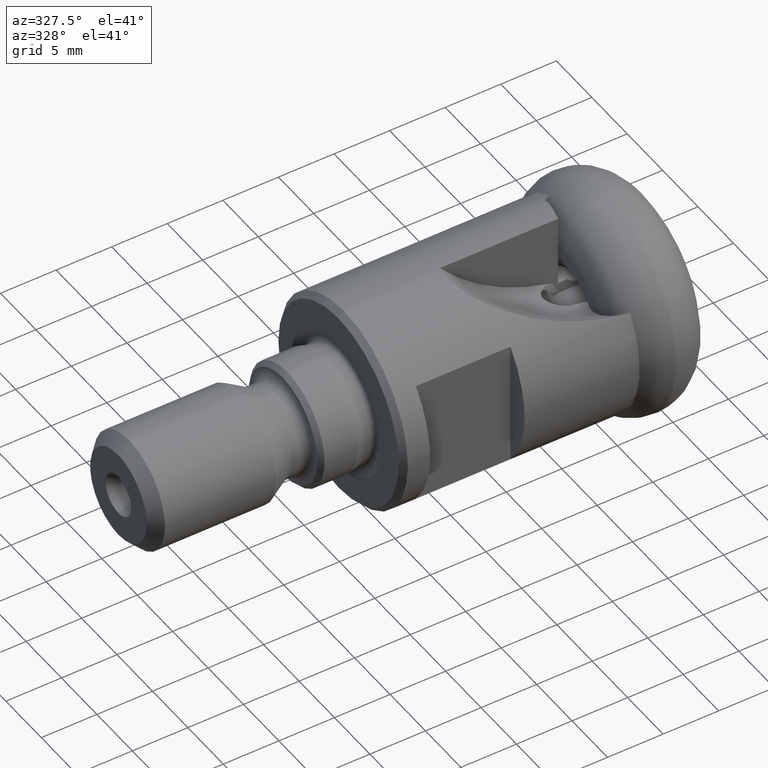
[diagram: clean part render]
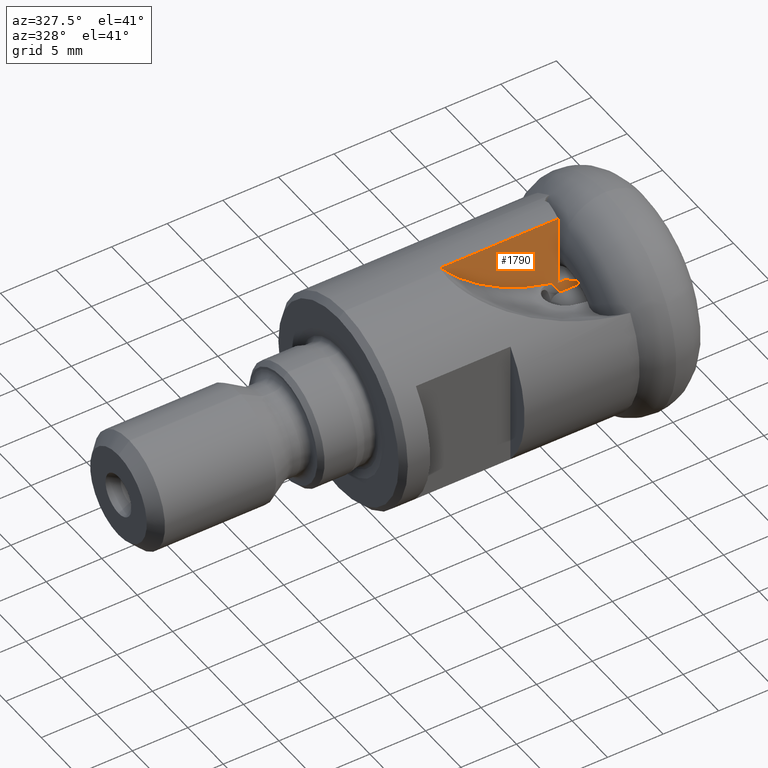
[diagram: same view with one face highlighted and labeled with its STEP entity id]
A machine part, auxiliary view. The second image highlights one B-rep face of the part: STEP entity #1790.
In plain terms, the highlighted planar face has unit normal (0, 1, -0).
Its self-contained STEP definition (entity closure, byte-faithful):
#51 = DIRECTION ( 'NONE',  ( 0.0000000000000000000, -6.984341057605262100E-015, -1.000000000000000000 ) ) ;
#69 = DIRECTION ( 'NONE',  ( 0.0000000000000000000, 6.982962677686266700E-015, 1.000000000000000000 ) ) ;
#110 = ORIENTED_EDGE ( 'NONE', *, *, #2973, .F. ) ;
#126 = CARTESIAN_POINT ( 'NONE',  ( -8.515342495405388200, 0.3000000000001130100, 16.16927097436765600 ) ) ;
#150 = EDGE_CURVE ( 'NONE', #1982, #3299, #1461, .T. ) ;
#250 = LINE ( 'NONE', #2631, #3177 ) ;
#339 = CARTESIAN_POINT ( 'NONE',  ( -4.893567078971260600, 0.3000000000000250800, 3.548999999999997700 ) ) ;
#373 = DIRECTION ( 'NONE',  ( -1.000000000000000000, 0.0000000000000000000, 0.0000000000000000000 ) ) ;
#460 = ORIENTED_EDGE ( 'NONE', *, *, #150, .T. ) ;
#507 = CARTESIAN_POINT ( 'NONE',  ( -6.949821249581273900, 0.3000000000000203100, 2.892272899123483000 ) ) ;
#515 = VERTEX_POINT ( 'NONE', #1921 ) ;
#543 = VERTEX_POINT ( 'NONE', #3321 ) ;
#556 = VERTEX_POINT ( 'NONE', #507 ) ;
#588 = ORIENTED_EDGE ( 'NONE', *, *, #3003, .T. ) ;
#624 = DIRECTION ( 'NONE',  ( 1.882704054511193300E-016, -6.982962677686267500E-015, -1.000000000000000000 ) ) ;
#684 = DIRECTION ( 'NONE',  ( 0.5230019954142246500, -5.942975831587999200E-015, -0.8523314571179099200 ) ) ;
#691 = DIRECTION ( 'NONE',  ( 1.000000000000000000, 0.0000000000000000000, 0.0000000000000000000 ) ) ;
#813 = CARTESIAN_POINT ( 'NONE',  ( -1.856999999999999300, 0.3000000000000134800, 1.945178750418724100 ) ) ;
#834 = ORIENTED_EDGE ( 'NONE', *, *, #2272, .T. ) ;
#936 = EDGE_CURVE ( 'NONE', #1982, #556, #3004, .T. ) ;
#961 = CARTESIAN_POINT ( 'NONE',  ( 3.608589205214994200, 0.3000000000000181400, 2.548999999999997300 ) ) ;
#963 = FACE_OUTER_BOUND ( 'NONE', #1911, .T. ) ;
#993 = CARTESIAN_POINT ( 'NONE',  ( -6.949821249581274800, 0.3000000000000628800, 8.994998610338967600 ) ) ;
#1019 = VERTEX_POINT ( 'NONE', #813 ) ;
#1103 = EDGE_CURVE ( 'NONE', #2593, #556, #250, .T. ) ;
#1143 = CARTESIAN_POINT ( 'NONE',  ( -3.156443385530522500, 0.3000000000001472000, 21.03115177251318000 ) ) ;
#1154 = EDGE_CURVE ( 'NONE', #2593, #2818, #3131, .T. ) ;
#1177 = CARTESIAN_POINT ( 'NONE',  ( 0.0000000000000000000, 0.3000000000000629400, 8.994998610338965900 ) ) ;
#1235 = AXIS2_PLACEMENT_3D ( 'NONE', #126, #3160, #69 ) ;
#1262 = CARTESIAN_POINT ( 'NONE',  ( -4.893567078971260600, 0.3000000000000138100, 1.945178750418724600 ) ) ;
#1295 = VECTOR ( 'NONE', #373, 1000.000000000000000 ) ;
#1331 = AXIS2_PLACEMENT_3D ( 'NONE', #339, #2316, #2616 ) ;
#1394 = AXIS2_PLACEMENT_3D ( 'NONE', #1143, #3145, #51 ) ;
#1431 = VECTOR ( 'NONE', #624, 1000.000000000000000 ) ;
#1461 = LINE ( 'NONE', #1177, #1295 ) ;
#1474 = ORIENTED_EDGE ( 'NONE', *, *, #2298, .F. ) ;
#1614 = LINE ( 'NONE', #2912, #2181 ) ;
#1630 = LINE ( 'NONE', #1757, #2278 ) ;
#1676 = ORIENTED_EDGE ( 'NONE', *, *, #3245, .F. ) ;
#1746 = CARTESIAN_POINT ( 'NONE',  ( -17.57659005753240000, 0.3000000000000631600, 8.994998610338964100 ) ) ;
#1751 = DIRECTION ( 'NONE',  ( 0.0000000000000000000, -6.982962677686266700E-015, -1.000000000000000000 ) ) ;
#1757 = CARTESIAN_POINT ( 'NONE',  ( 1.330137728401510800, 0.3000000000000100400, 1.542927206851575800 ) ) ;
#1790 = ADVANCED_FACE ( 'NONE', ( #963 ), #1807, .F. ) ;
#1807 = PLANE ( 'NONE',  #1235 ) ;
#1911 = EDGE_LOOP ( 'NONE', ( #3372, #2517, #2201, #460, #834, #588, #2787, #1474, #110, #1676 ) ) ;
#1921 = CARTESIAN_POINT ( 'NONE',  ( -1.856999999999999300, 0.3000000000000104800, 1.542927206851575800 ) ) ;
#1976 = CARTESIAN_POINT ( 'NONE',  ( -6.773129240000000300, 0.3000000000000111500, 1.542927206851575400 ) ) ;
#1982 = VERTEX_POINT ( 'NONE', #993 ) ;
#2112 = DIRECTION ( 'NONE',  ( 1.000000000000000000, -4.303448850524653900E-031, -6.162783691048680700E-017 ) ) ;
#2181 = VECTOR ( 'NONE', #684, 1000.000000000000100 ) ;
#2201 = ORIENTED_EDGE ( 'NONE', *, *, #936, .F. ) ;
#2229 = CARTESIAN_POINT ( 'NONE',  ( -4.893567078971260600, 0.3000000000000133700, 1.945178750418724600 ) ) ;
#2272 = EDGE_CURVE ( 'NONE', #3299, #543, #3269, .T. ) ;
#2278 = VECTOR ( 'NONE', #2611, 1000.000000000000000 ) ;
#2298 = EDGE_CURVE ( 'NONE', #1019, #515, #2401, .T. ) ;
#2316 = DIRECTION ( 'NONE',  ( 0.0000000000000000000, -1.000000000000000000, 6.982962677686266700E-015 ) ) ;
#2374 = CIRCLE ( 'NONE', #1331, 1.603821249581272900 ) ;
#2395 = VECTOR ( 'NONE', #691, 1000.000000000000000 ) ;
#2401 = LINE ( 'NONE', #3375, #3446 ) ;
#2408 = CARTESIAN_POINT ( 'NONE',  ( -6.972319421711725700, 0.3000000000000178100, 2.548999999999997300 ) ) ;
#2517 = ORIENTED_EDGE ( 'NONE', *, *, #1103, .T. ) ;
#2593 = VERTEX_POINT ( 'NONE', #2408 ) ;
#2611 = DIRECTION ( 'NONE',  ( 1.000000000000000000, -1.337981553259104000E-016, 9.343075249841021400E-031 ) ) ;
#2616 = DIRECTION ( 'NONE',  ( 0.0000000000000000000, -6.996722663547878400E-015, -1.000000000000000000 ) ) ;
#2631 = CARTESIAN_POINT ( 'NONE',  ( -6.090062063695859800, 0.3000000000001119000, 16.01031762629811400 ) ) ;
#2654 = DIRECTION ( 'NONE',  ( 0.06539988057497861400, 6.969726643075496100E-015, 0.9978591361614015400 ) ) ;
#2787 = ORIENTED_EDGE ( 'NONE', *, *, #3348, .T. ) ;
#2818 = VERTEX_POINT ( 'NONE', #3060 ) ;
#2873 = VECTOR ( 'NONE', #2112, 1000.000000000000000 ) ;
#2912 = CARTESIAN_POINT ( 'NONE',  ( -9.163236467181089800, 0.3000000000000382900, 5.438062585824353000 ) ) ;
#2973 = EDGE_CURVE ( 'NONE', #3159, #1019, #3132, .T. ) ;
#3003 = EDGE_CURVE ( 'NONE', #543, #3122, #1614, .T. ) ;
#3004 = LINE ( 'NONE', #3092, #1431 ) ;
#3060 = CARTESIAN_POINT ( 'NONE',  ( -6.147458063310981700, 0.3000000000000179200, 2.548999999999997300 ) ) ;
#3092 = CARTESIAN_POINT ( 'NONE',  ( -6.949821249581275700, 0.3000000000000888100, 12.71009393704214600 ) ) ;
#3122 = VERTEX_POINT ( 'NONE', #1976 ) ;
#3131 = LINE ( 'NONE', #961, #2395 ) ;
#3132 = LINE ( 'NONE', #1262, #2873 ) ;
#3145 = DIRECTION ( 'NONE',  ( -0.0000000000000000000, -1.000000000000000000, 6.982962677686266700E-015 ) ) ;
#3159 = VERTEX_POINT ( 'NONE', #2229 ) ;
#3160 = DIRECTION ( 'NONE',  ( 0.0000000000000000000, 1.000000000000000000, -6.982962677686266700E-015 ) ) ;
#3177 = VECTOR ( 'NONE', #2654, 1000.000000000000200 ) ;
#3245 = EDGE_CURVE ( 'NONE', #2818, #3159, #2374, .T. ) ;
#3269 = CIRCLE ( 'NONE', #1394, 18.78322690554961800 ) ;
#3299 = VERTEX_POINT ( 'NONE', #1746 ) ;
#3321 = CARTESIAN_POINT ( 'NONE',  ( -7.521230026828538600, 0.3000000000000196400, 2.762100057623611000 ) ) ;
#3348 = EDGE_CURVE ( 'NONE', #3122, #515, #1630, .T. ) ;
#3372 = ORIENTED_EDGE ( 'NONE', *, *, #1154, .F. ) ;
#3375 = CARTESIAN_POINT ( 'NONE',  ( -1.856999999999999300, 0.2999999999999999300, 2.744304332330703000E-014 ) ) ;
#3446 = VECTOR ( 'NONE', #1751, 1000.000000000000000 ) ;